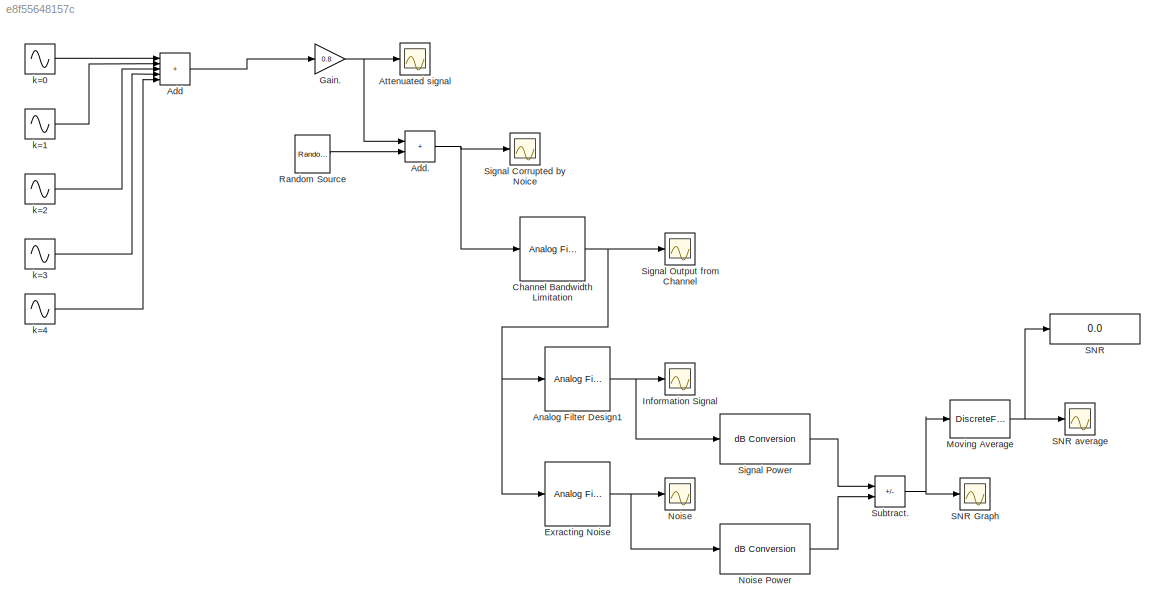
MODEL slx_e8f55648157c
KIND model
CONFIG AbsTol = auto
CONFIG EnableMultiTasking = off
CONFIG FixedStep = auto
CONFIG MaxStep = auto
CONFIG MinStep = auto
CONFIG RelTol = 1e-3
CONFIG SampleTimeConstraint = Unconstrained
CONFIG SolverName = VariableStepAuto
CONFIG StartTime = 0.0
CONFIG StopTime = 10
BLOCK [Sum] Add
  IconShape = rectangular
  Inputs = +++++
BLOCK [Sum] Add.
  IconShape = rectangular
BLOCK [Reference] Analog Filter Design1  REF=dspfdesign/Analog
Filter Design
  SourceBlock = dspfdesign/Analog\nFilter Design
  SourceType = Analog Filter Design
BLOCK [Scope] Attenuated signal
  Floating = off
  NumInputPorts = 1
  ScopeSpecificationString = Simulink.scopes.TimeScopeBlockCfg('CurrentConfiguration', extmgr.ConfigurationSet(extmgr.Configuration('Core','General UI',true),extmgr.Configuration('Core','Source UI',true),extmgr.Configuration('Sources','WiredSimulink',true,'DataLoggingVariableName','ScopeData6'),extmgr.Configuration('Visuals','Time Domain',true,'SerializedDisplays',{struct('MinYLimReal','-29.55934','MaxYLimReal','29.5593','YLa...<+1475ch>
BLOCK [Reference] Channel Bandwidth Limitation  REF=dspfdesign/Analog
Filter Design
  SourceBlock = dspfdesign/Analog\nFilter Design
  SourceType = Analog Filter Design
BLOCK [Reference] Exracting Noise  REF=dspfdesign/Analog
Filter Design
  SourceBlock = dspfdesign/Analog\nFilter Design
  SourceType = Analog Filter Design
BLOCK [Gain] Gain.
  Gain = 0.8
BLOCK [Scope] Information Signal
  Floating = off
  NumInputPorts = 1
  ScopeSpecificationString = Simulink.scopes.TimeScopeBlockCfg('CurrentConfiguration', extmgr.ConfigurationSet(extmgr.Configuration('Core','General UI',true),extmgr.Configuration('Core','Source UI',true),extmgr.Configuration('Sources','WiredSimulink',true,'DataLoggingVariableName','ScopeData3'),extmgr.Configuration('Visuals','Time Domain',true,'SerializedDisplays',{struct('MinYLimReal','-29.3004','MaxYLimReal','30.20868','YLa...<+1439ch>
BLOCK [DiscreteFir] Moving Average
  Coefficients = ones(1,1000)/1000
  InputPortMap = u0
  OutputPortMap = o0
  SampleTime = 0.001
BLOCK [Scope] Noise
  Floating = off
  NumInputPorts = 1
  ScopeSpecificationString = Simulink.scopes.TimeScopeBlockCfg('CurrentConfiguration', extmgr.ConfigurationSet(extmgr.Configuration('Core','General UI',true),extmgr.Configuration('Core','Source UI',true),extmgr.Configuration('Sources','WiredSimulink',true,'DataLoggingVariableName','ScopeData2'),extmgr.Configuration('Visuals','Time Domain',true,'SerializedDisplays',{struct('MinYLimReal','-5.24864','MaxYLimReal','7.8692','YLabe...<+1370ch>
BLOCK [Reference] Noise Power  REF=dspmathops/dB Conversion
  LibrarySourceBlock = commutil2/dB Conversion
  SourceBlock = dspmathops/dB Conversion
  SourceType = dB Conversion
BLOCK [Reference] Random Source  REF=dspsrcs4/Random
Source
  SourceBlock = dspsrcs4/Random\nSource
  SourceType = Random Source
  UserDataPersistent = on
BLOCK [Display] SNR
  Decimation = 1
BLOCK [Scope] SNR Graph
  Floating = off
  NumInputPorts = 1
  ScopeSpecificationString = Simulink.scopes.TimeScopeBlockCfg('CurrentConfiguration', extmgr.ConfigurationSet(extmgr.Configuration('Core','General UI',true),extmgr.Configuration('Core','Source UI',true),extmgr.Configuration('Sources','WiredSimulink',true,'DataLoggingVariableName','ScopeData1'),extmgr.Configuration('Visuals','Time Domain',true,'SerializedDisplays',{struct('MinYLimReal','-1119.5951','MaxYLimReal','263.6538','Y...<+1382ch>
BLOCK [Scope] SNR average
  Floating = off
  NumInputPorts = 1
  ScopeSpecificationString = Simulink.scopes.TimeScopeBlockCfg('CurrentConfiguration', extmgr.ConfigurationSet(extmgr.Configuration('Core','General UI',true),extmgr.Configuration('Core','Source UI',true),extmgr.Configuration('Sources','WiredSimulink',true),extmgr.Configuration('Visuals','Time Domain',true,'SerializedDisplays',{struct('MinYLimReal','-84.56174','MaxYLimReal','32.64623','YLabelReal','','MinYLimMag','0.00000','Ma...<+1340ch>
BLOCK [Scope] Signal Corrupted by Noice
  Floating = off
  NumInputPorts = 1
  ScopeSpecificationString = Simulink.scopes.TimeScopeBlockCfg('CurrentConfiguration', extmgr.ConfigurationSet(extmgr.Configuration('Core','General UI',true),extmgr.Configuration('Core','Source UI',true),extmgr.Configuration('Sources','WiredSimulink',true,'DataLoggingVariableName','ScopeData5'),extmgr.Configuration('Visuals','Time Domain',true,'SerializedDisplays',{struct('MinYLimReal','0.14897','MaxYLimReal','0.7507','YLabel...<+1410ch>
BLOCK [Scope] Signal Output from Channel
  Floating = off
  NumInputPorts = 1
  ScopeSpecificationString = Simulink.scopes.TimeScopeBlockCfg('CurrentConfiguration', extmgr.ConfigurationSet(extmgr.Configuration('Core','General UI',true),extmgr.Configuration('Core','Source UI',true),extmgr.Configuration('Sources','WiredSimulink',true,'DataLoggingVariableName','ScopeData4'),extmgr.Configuration('Visuals','Time Domain',true,'SerializedDisplays',{struct('MinYLimReal','-10.6508','MaxYLimReal','10.76744','YLa...<+1476ch>
BLOCK [Reference] Signal Power  REF=dspmathops/dB Conversion
  LibrarySourceBlock = commutil2/dB Conversion
  SourceBlock = dspmathops/dB Conversion
  SourceType = dB Conversion
BLOCK [Sum] Subtract.
  IconShape = rectangular
  Inputs = +-
BLOCK [Sin] k=0
  Amplitude = 10
  Frequency = 200
  SampleTime = 0
BLOCK [Sin] k=1
  Amplitude = 8
  Frequency = 220
  SampleTime = 0
BLOCK [Sin] k=2
  Amplitude = 6
  Frequency = 240
  SampleTime = 0
BLOCK [Sin] k=3
  Amplitude = 4
  Frequency = 260
  SampleTime = 0
BLOCK [Sin] k=4
  Amplitude = 2
  Frequency = 280
  SampleTime = 0
NET Add.:1 -> Channel Bandwidth Limitation:1, Signal Corrupted by Noice:1
LINE Add:1 -> Gain.:1
NET Analog Filter Design1:1 -> Information Signal:1, Signal Power:1
NET Channel Bandwidth Limitation:1 -> Analog Filter Design1:1, Exracting Noise:1, Signal Output from Channel:1
NET Exracting Noise:1 -> Noise Power:1, Noise:1
NET Gain.:1 -> Add.:1, Attenuated signal:1
NET Moving Average:1 -> SNR average:1, SNR:1
LINE Noise Power:1 -> Subtract.:2
LINE Random Source:1 -> Add.:2
LINE Signal Power:1 -> Subtract.:1
NET Subtract.:1 -> Moving Average:1, SNR Graph:1
LINE k=0:1 -> Add:1
LINE k=1:1 -> Add:2
LINE k=2:1 -> Add:3
LINE k=3:1 -> Add:4
LINE k=4:1 -> Add:5
note: NET lines group one-source signal fan-out (src -> all destinations, sorted); 1:1 wires keep LINE
